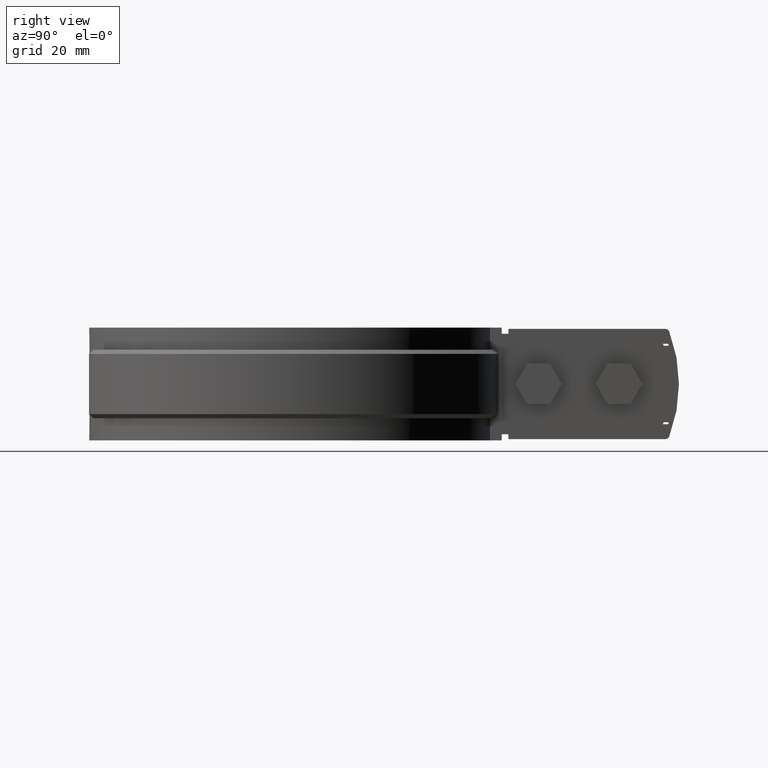
[diagram: clean part render]
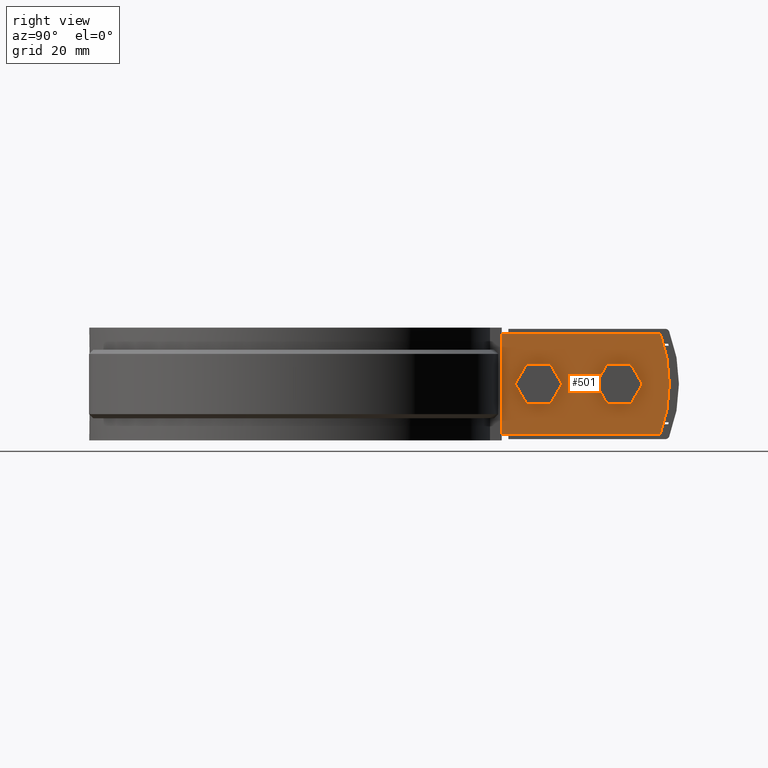
[diagram: same view with one face highlighted and labeled with its STEP entity id]
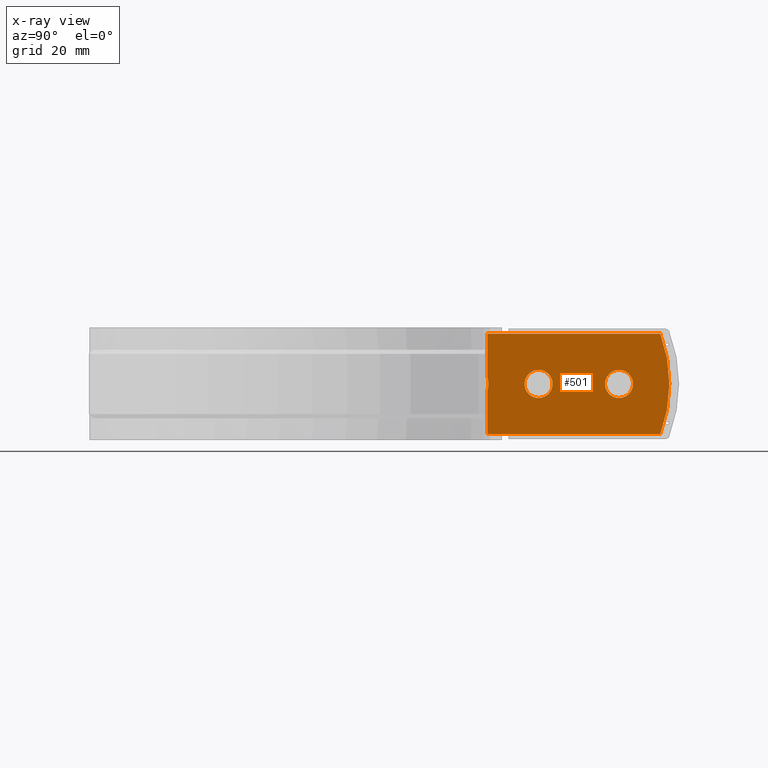
[diagram: x-ray of the same camera — body ghosted, the highlighted face saturated]
A machine part, right view. The second image highlights one B-rep face of the part: STEP entity #501.
The next image is the same camera in x-ray: the body ghosted, the highlighted face saturated — about 0% of this face is hidden behind the body in this view.
In plain terms, the highlighted planar face has unit normal (1, 0, 0).
Its self-contained STEP definition (entity closure, byte-faithful):
#501 = ADVANCED_FACE( '', ( #928, #929, #930 ), #931, .T. );
#928 = FACE_OUTER_BOUND( '', #2003, .T. );
#929 = FACE_BOUND( '', #2004, .T. );
#930 = FACE_BOUND( '', #2005, .T. );
#931 = PLANE( '', #2006 );
#2003 = EDGE_LOOP( '', ( #4065, #4066, #4067, #4068, #4069, #4070 ) );
#2004 = EDGE_LOOP( '', ( #4071 ) );
#2005 = EDGE_LOOP( '', ( #4072 ) );
#2006 = AXIS2_PLACEMENT_3D( '', #4073, #4074, #4075 );
#4065 = ORIENTED_EDGE( '', *, *, #7708, .F. );
#4066 = ORIENTED_EDGE( '', *, *, #7716, .F. );
#4067 = ORIENTED_EDGE( '', *, *, #7720, .T. );
#4068 = ORIENTED_EDGE( '', *, *, #7719, .T. );
#4069 = ORIENTED_EDGE( '', *, *, #7599, .F. );
#4070 = ORIENTED_EDGE( '', *, *, #7714, .F. );
#4071 = ORIENTED_EDGE( '', *, *, #7721, .T. );
#4072 = ORIENTED_EDGE( '', *, *, #7648, .T. );
#4073 = CARTESIAN_POINT( '', ( 5.00000000000000, 49.0025509540065, -12.5000000000000 ) );
#4074 = DIRECTION( '', ( 1.00000000000000, 2.34067589742701E-049, 3.79805155346016E-033 ) );
#4075 = DIRECTION( '', ( 0.000000000000000, 1.00000000000000, -6.16283340149655E-017 ) );
#7599 = EDGE_CURVE( '', #8610, #8612, #8613, .F. );
#7648 = EDGE_CURVE( '', #8702, #8702, #8703, .F. );
#7708 = EDGE_CURVE( '', #8795, #8797, #8798, .T. );
#7714 = EDGE_CURVE( '', #8797, #8610, #8804, .T. );
#7716 = EDGE_CURVE( '', #8805, #8795, #8807, .T. );
#7719 = EDGE_CURVE( '', #8809, #8612, #8811, .T. );
#7720 = EDGE_CURVE( '', #8805, #8809, #8812, .T. );
#7721 = EDGE_CURVE( '', #8813, #8813, #8814, .F. );
#8610 = VERTEX_POINT( '', #10283 );
#8612 = VERTEX_POINT( '', #10285 );
#8613 = LINE( '', #10286, #10287 );
#8702 = VERTEX_POINT( '', #10848 );
#8703 = CIRCLE( '', #10849, 3.50000000000000 );
#8795 = VERTEX_POINT( '', #11494 );
#8797 = VERTEX_POINT( '', #11511 );
#8798 = B_SPLINE_CURVE_WITH_KNOTS( '', 3, ( #11512, #11513, #11514, #11515, #11516, #11517, #11518, #11519 ), .UNSPECIFIED., .F., .F., ( 4, 2, 2, 4 ), ( 0.000000000000000, 0.00168457269475963, 0.00252685904213944, 0.00336914538951925 ), .UNSPECIFIED. );
#8804 = LINE( '', #11543, #11544 );
#8805 = VERTEX_POINT( '', #11545 );
#8807 = LINE( '', #11547, #11548 );
#8809 = VERTEX_POINT( '', #11551 );
#8811 = CIRCLE( '', #11554, 36.0000000000000 );
#8812 = LINE( '', #11555, #11556 );
#8813 = VERTEX_POINT( '', #11557 );
#8814 = CIRCLE( '', #11558, 3.50000000000000 );
#10283 = CARTESIAN_POINT( '', ( 5.00000000000000, 49.0025509540065, 12.5000000000000 ) );
#10285 = CARTESIAN_POINT( '', ( 5.00000000000000, 91.9562927180176, 12.5000000000000 ) );
#10286 = CARTESIAN_POINT( '', ( 5.00000000000000, 49.0025509540065, 12.5000000000000 ) );
#10287 = VECTOR( '', #14653, 1000.00000000000 );
#10848 = CARTESIAN_POINT( '', ( 5.00000000000000, 61.6961090692280, -3.50000000000000 ) );
#10849 = AXIS2_PLACEMENT_3D( '', #14711, #14712, #14713 );
#11494 = CARTESIAN_POINT( '', ( 5.00000000000000, 49.0025509540065, -1.67294878143786 ) );
#11511 = CARTESIAN_POINT( '', ( 5.00000000000000, 49.0025509540065, 1.67294878144052 ) );
#11512 = CARTESIAN_POINT( '', ( 5.00000000000000, 49.0025509540065, -1.67294878143786 ) );
#11513 = CARTESIAN_POINT( '', ( 5.00000000000000, 49.1629272890020, -1.12656002922779 ) );
#11514 = CARTESIAN_POINT( '', ( 5.00000000000000, 49.2451496729051, -0.570860486804293 ) );
#11515 = CARTESIAN_POINT( '', ( 5.00000000000000, 49.2459548465781, 0.277286121426490 ) );
#11516 = CARTESIAN_POINT( '', ( 4.99999999999999, 49.2249843333288, 0.562787795114991 ) );
#11517 = CARTESIAN_POINT( '', ( 4.99999999999999, 49.1433421235272, 1.12294091024392 ) );
#11518 = CARTESIAN_POINT( '', ( 4.99999999999995, 49.0827754315862, 1.39963069992493 ) );
#11519 = CARTESIAN_POINT( '', ( 4.99999999999995, 49.0025509540065, 1.67294878144041 ) );
#11543 = CARTESIAN_POINT( '', ( 5.00000000000000, 49.0025509540065, -12.5000000000000 ) );
#11544 = VECTOR( '', #14778, 1000.00000000000 );
#11545 = CARTESIAN_POINT( '', ( 5.00000000000000, 49.0025509540065, -12.5000000000000 ) );
#11547 = CARTESIAN_POINT( '', ( 5.00000000000000, 49.0025509540065, -12.5000000000000 ) );
#11548 = VECTOR( '', #14782, 1000.00000000000 );
#11551 = CARTESIAN_POINT( '', ( 5.00000000000000, 91.9562927180176, -12.5000000000000 ) );
#11554 = AXIS2_PLACEMENT_3D( '', #14785, #14786, #14787 );
#11555 = CARTESIAN_POINT( '', ( 5.00000000000000, 49.0025509540065, -12.5000000000000 ) );
#11556 = VECTOR( '', #14788, 1000.00000000000 );
#11557 = CARTESIAN_POINT( '', ( 5.00000000000000, 81.6961090692280, -3.50000000000000 ) );
#11558 = AXIS2_PLACEMENT_3D( '', #14789, #14790, #14791 );
#14653 = DIRECTION( '', ( 2.34067589742701E-049, -1.00000000000000, 0.000000000000000 ) );
#14711 = CARTESIAN_POINT( '', ( 5.00000000000000, 61.6961090692280, -1.73472347597681E-015 ) );
#14712 = DIRECTION( '', ( 1.00000000000000, 2.34067589742701E-049, 3.79805155346016E-033 ) );
#14713 = DIRECTION( '', ( 3.79805155346016E-033, 0.000000000000000, -1.00000000000000 ) );
#14778 = DIRECTION( '', ( 0.000000000000000, 0.000000000000000, 1.00000000000000 ) );
#14782 = DIRECTION( '', ( 0.000000000000000, 0.000000000000000, 1.00000000000000 ) );
#14785 = CARTESIAN_POINT( '', ( 5.00000000000000, 58.1961090692280, -2.42610478306369E-030 ) );
#14786 = DIRECTION( '', ( 1.00000000000000, 2.34067589742701E-049, 3.79805155346016E-033 ) );
#14787 = DIRECTION( '', ( 3.79805155346016E-033, 0.000000000000000, -1.00000000000000 ) );
#14788 = DIRECTION( '', ( -2.34067589742701E-049, 1.00000000000000, 0.000000000000000 ) );
#14789 = CARTESIAN_POINT( '', ( 5.00000000000000, 81.6961090692280, -1.73472347597681E-015 ) );
#14790 = DIRECTION( '', ( 1.00000000000000, 2.34067589742701E-049, 3.79805155346016E-033 ) );
#14791 = DIRECTION( '', ( 3.79805155346016E-033, 0.000000000000000, -1.00000000000000 ) );